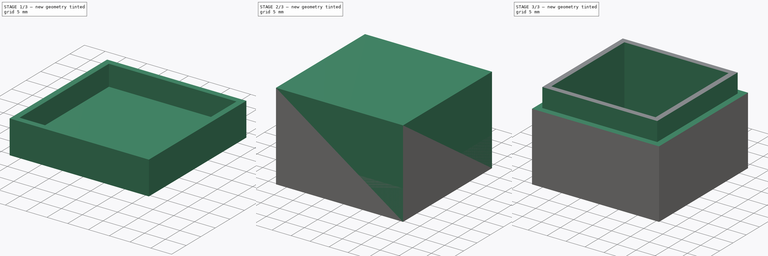
[diagram: build sequence overview — one tinted view per stage of 3, left to right]
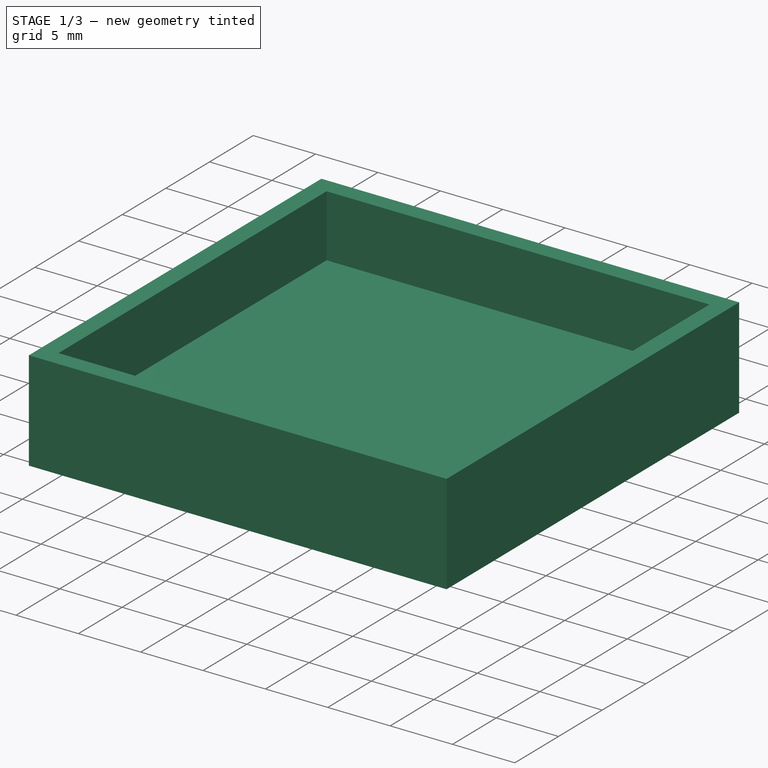
[diagram: stage 1 of 3 — iso view after this stage's code; geometry added in this stage tinted green]
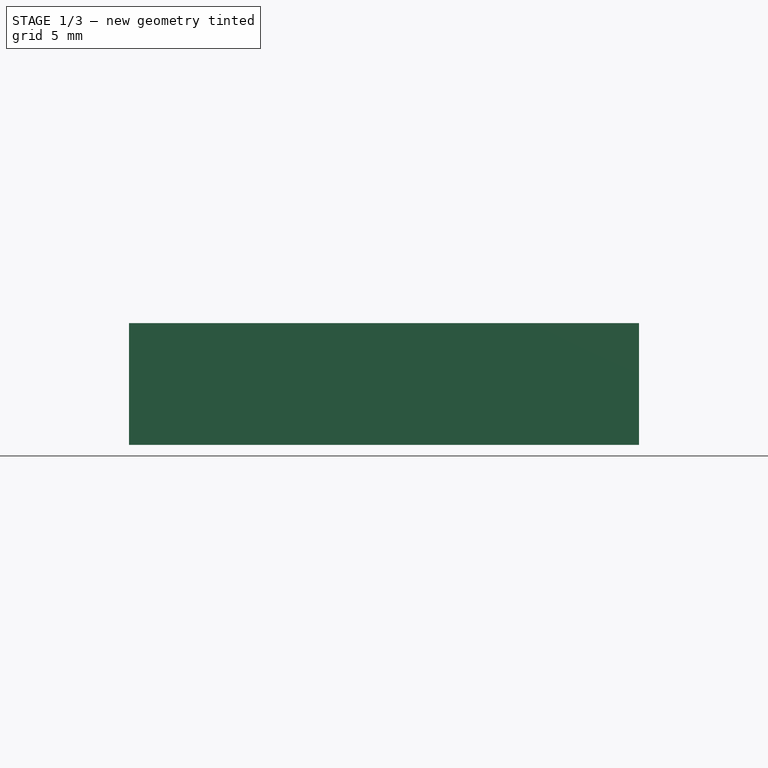
[diagram: stage 1 of 3 — front view after this stage's code; geometry added in this stage tinted green]
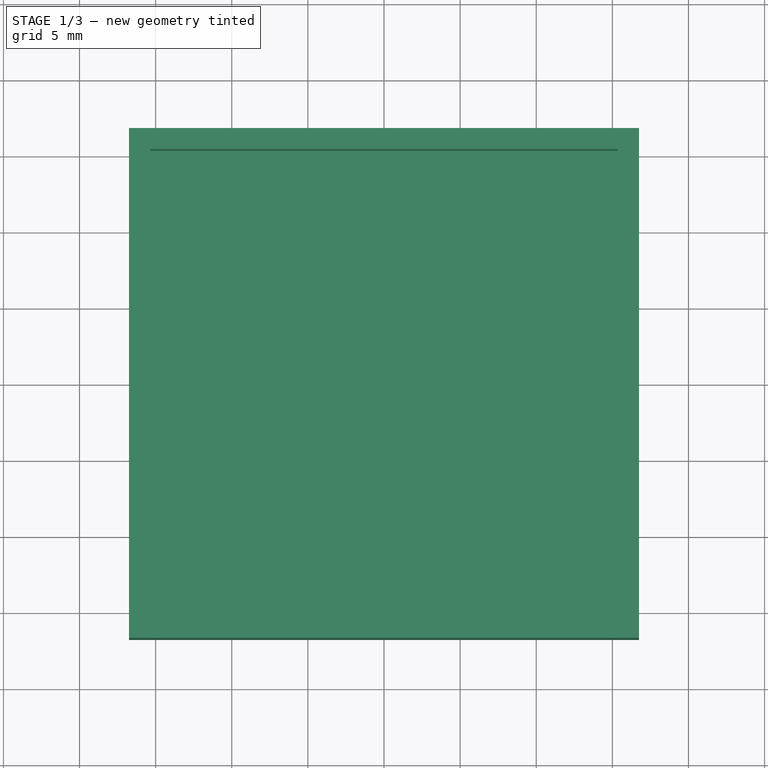
[diagram: stage 1 of 3 — top view after this stage's code; geometry added in this stage tinted green]
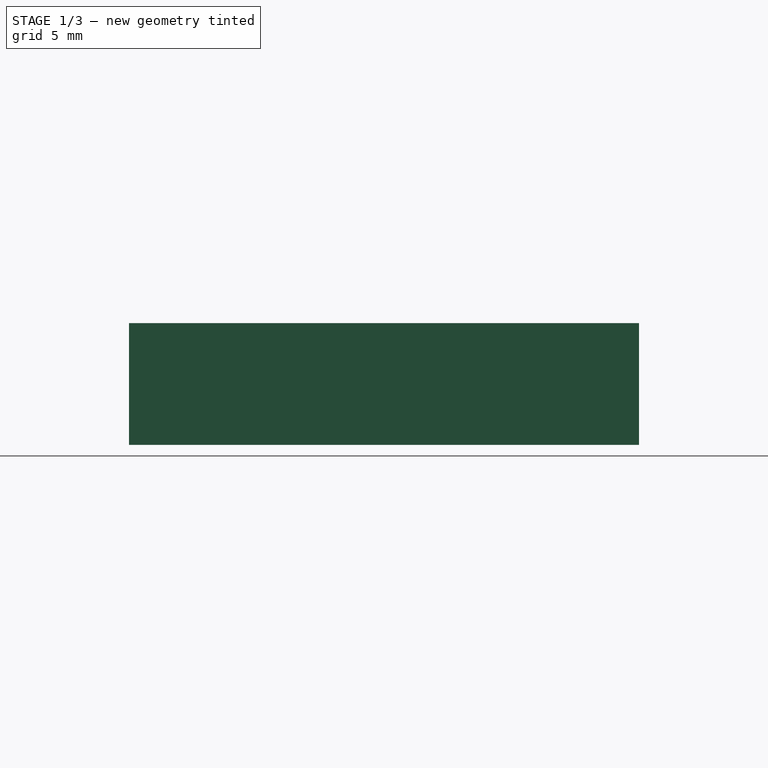
[diagram: stage 1 of 3 — right view after this stage's code; geometry added in this stage tinted green]
FCSTD DOCUMENT  (FreeCAD 1.0R39319 (Git))
Label: SquareSmallBox
License: All rights reserved
LicenseURL: https://en.wikipedia.org/wiki/All_rights_reserved
objects: Sketcher::SketchObject×4, PartDesign::Pad×2, PartDesign::Pocket×2, PartDesign::Body×2, App::VarSet×1, PartDesign::SubtractiveBox×1
note: 25 computed .brp shape members not serialized (recipe doc carries the construction recipe); baked Part::Feature solids carry a one-line shape summary decoded from their .brp

FEATURE [PartDesign::Body] Body  label="Bottom"
  AllowCompound = false
  Group = -> [Sketch,Pad,Box,Sketch001,Pocket]
  Origin = -> Origin
  Tip = -> Pocket
FEATURE [Sketcher::SketchObject] Sketch002
  ArcFitTolerance = 1e-06
  AttachmentSupport = -> [XY_Plane001]
  FullyConstrained = true
  MakeInternals = false
  MapMode = 5
  expr: Constraints[10] = VarSet.ExternalLength
  expr: Constraints[11] = VarSet.ExternalWidth
  sketch-geometry (5):
    g0: LineSegment StartX=-16.75 StartY=16.75 StartZ=0 EndX=-16.75 EndY=-16.75 EndZ=0
    g1: LineSegment StartX=-16.75 StartY=-16.75 StartZ=0 EndX=16.75 EndY=-16.75 EndZ=0
    g2: LineSegment StartX=16.75 StartY=-16.75 StartZ=0 EndX=16.75 EndY=16.75 EndZ=0
    g3: LineSegment StartX=16.75 StartY=16.75 StartZ=0 EndX=-16.75 EndY=16.75 EndZ=0
    g4: GeomPoint [constr] X=0 Y=0 Z=0
  constraints (12):
    c: Coincident(g0,g1)
    c: Coincident(g1,g2)
    c: Coincident(g2,g3)
    c: Coincident(g3,g0)
    c: Vertical(g0)
    c: Vertical(g2)
    c: Horizontal(g1)
    c: Horizontal(g3)
    c: Symmetric(g2,g0,g4)
    c: Coincident(g4,g-1)
    c: DistanceX(g3,g3) = 33.5
    c: DistanceY(g0,g0) = 33.5
FEATURE [PartDesign::Pad] Pad001
  Direction = (0,0,1)
  Length = 8
  Length2 = 10
  Profile = -> Sketch002
  ReferenceAxis = -> Sketch002 [N_Axis]
  Refine = true
  Suppressed = false
  Type = 0
  expr: Length = VarSet.CapHeightExternal
FEATURE [Sketcher::SketchObject] Sketch003
  ArcFitTolerance = 1e-06
  AttachmentOffset = pos=(0,0,8) rot=(0,0,1;0rad)
  AttachmentSupport = -> [XY_Plane001]
  FullyConstrained = true
  MakeInternals = false
  MapMode = 5
  Placement = pos=(0,0,8) rot=(0,0,1;0rad)
  expr: .AttachmentOffset.Base.z = VarSet.CapHeightExternal
  expr: Constraints[10] = VarSet.ExternalLength - VarSet.Thickness + VarSet.CapBuffer
  expr: Constraints[11] = VarSet.ExternalWidth - VarSet.Thickness + VarSet.CapBuffer
  sketch-geometry (5):
    g0: LineSegment StartX=-15.35 StartY=15.35 StartZ=0 EndX=-15.35 EndY=-15.35 EndZ=0
    g1: LineSegment StartX=-15.35 StartY=-15.35 StartZ=0 EndX=15.35 EndY=-15.35 EndZ=0
    g2: LineSegment StartX=15.35 StartY=-15.35 StartZ=0 EndX=15.35 EndY=15.35 EndZ=0
    g3: LineSegment StartX=15.35 StartY=15.35 StartZ=0 EndX=-15.35 EndY=15.35 EndZ=0
    g4: GeomPoint [constr] X=0 Y=0 Z=0
  constraints (12):
    c: Coincident(g0,g1)
    c: Coincident(g1,g2)
    c: Coincident(g2,g3)
    c: Coincident(g3,g0)
    c: Vertical(g0)
    c: Vertical(g2)
    c: Horizontal(g1)
    c: Horizontal(g3)
    c: Symmetric(g2,g0,g4)
    c: Coincident(g4,g-1)
    c: DistanceX(g3,g3) = 30.7
    c: DistanceY(g0,g0) = 30.7
FEATURE [PartDesign::Pocket] Pocket001
  BaseFeature = -> Pad001
  Direction = (0,0,-1)
  Length = 5
  Length2 = 5
  Profile = -> Sketch003
  ReferenceAxis = -> Sketch003 [N_Axis]
  Refine = true
  Suppressed = false
  Type = 0
  expr: Length = VarSet.CapHeightInternal
FEATURE [PartDesign::Body] Body001  label="Cap"
  AllowCompound = false
  Group = -> [Sketch002,Pad001,Sketch003,Pocket001]
  Origin = -> Origin001
  Tip = -> Pocket001
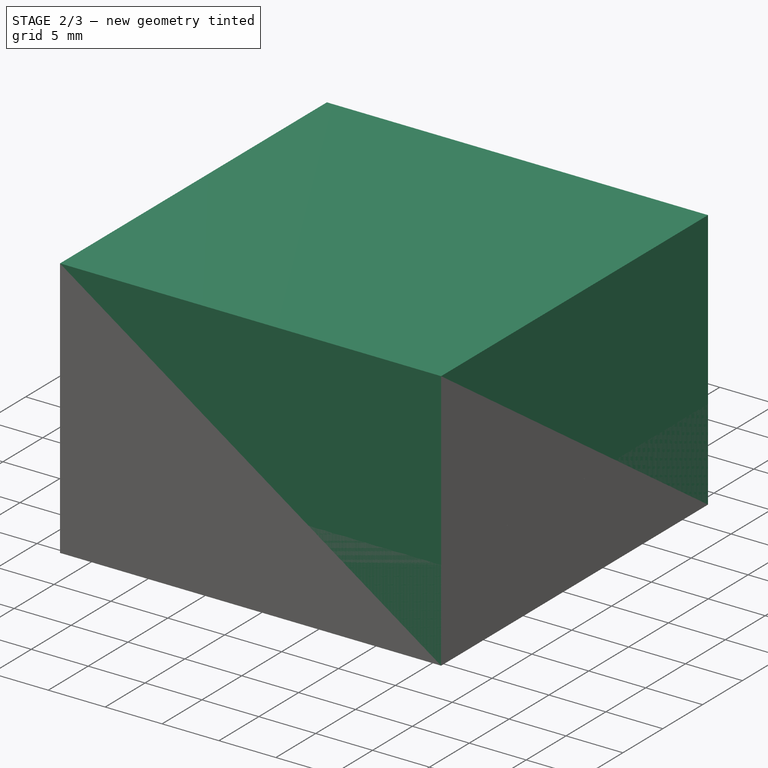
[diagram: stage 2 of 3 — iso view after this stage's code; geometry added in this stage tinted green]
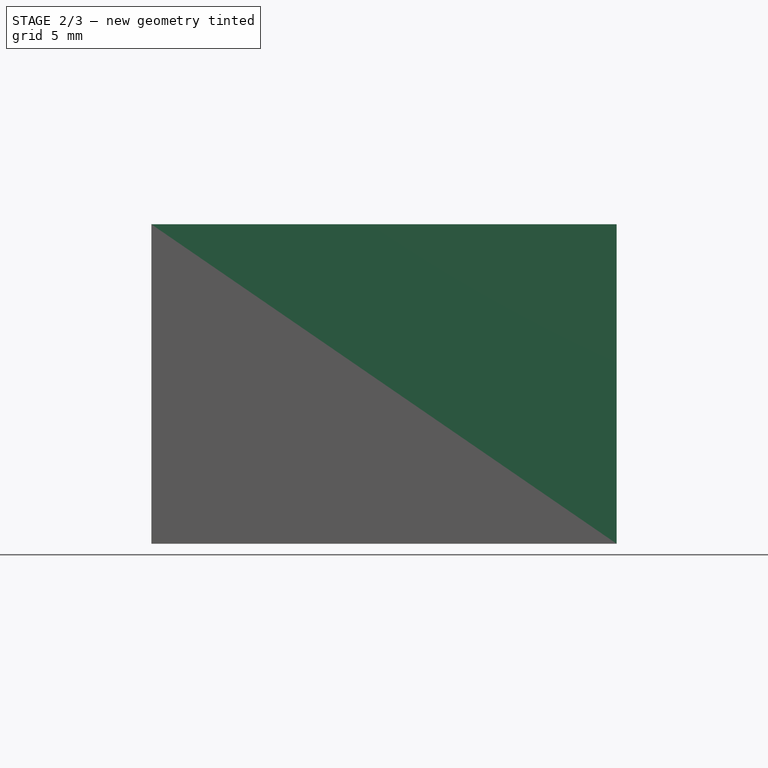
[diagram: stage 2 of 3 — front view after this stage's code; geometry added in this stage tinted green]
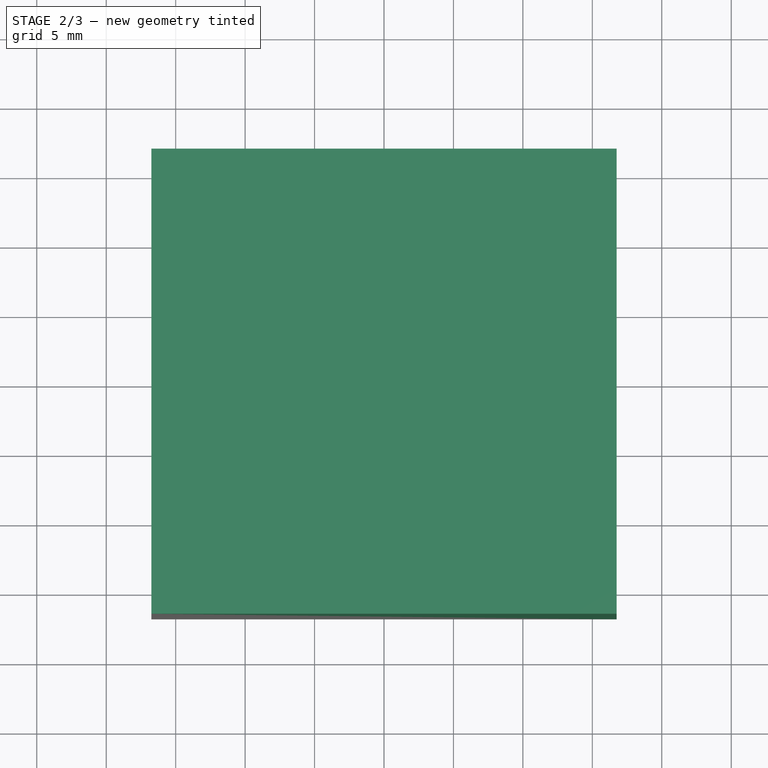
[diagram: stage 2 of 3 — top view after this stage's code; geometry added in this stage tinted green]
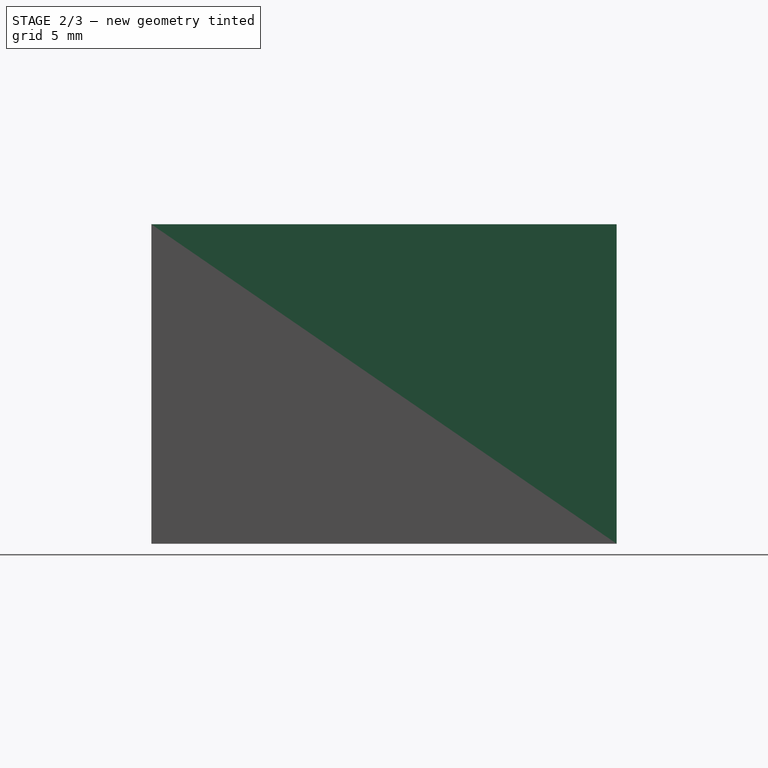
[diagram: stage 2 of 3 — right view after this stage's code; geometry added in this stage tinted green]
FEATURE [Sketcher::SketchObject] Sketch
  ArcFitTolerance = 1e-06
  AttachmentSupport = -> [XY_Plane]
  FullyConstrained = true
  MakeInternals = false
  MapMode = 5
  expr: Constraints[10] = VarSet.ExternalLength / 2
  expr: Constraints[11] = VarSet.ExternalWidth / 2
  expr: Constraints[8] = VarSet.ExternalLength
  expr: Constraints[9] = VarSet.ExternalWidth
  sketch-geometry (4):
    g0: LineSegment StartX=-16.75 StartY=16.75 StartZ=0 EndX=-16.75 EndY=-16.75 EndZ=0
    g1: LineSegment StartX=-16.75 StartY=-16.75 StartZ=0 EndX=16.75 EndY=-16.75 EndZ=0
    g2: LineSegment StartX=16.75 StartY=-16.75 StartZ=0 EndX=16.75 EndY=16.75 EndZ=0
    g3: LineSegment StartX=16.75 StartY=16.75 StartZ=0 EndX=-16.75 EndY=16.75 EndZ=0
  constraints (12):
    c: Coincident(g0,g1)
    c: Coincident(g1,g2)
    c: Coincident(g2,g3)
    c: Coincident(g3,g0)
    c: Vertical(g0)
    c: Vertical(g2)
    c: Horizontal(g1)
    c: Horizontal(g3)
    c: DistanceX(g3,g3) = 33.5
    c: DistanceY(g0,g0) = 33.5
    c: Distance(g2,g-2) = 16.75
    c: Distance(g1,g-1) = 16.75
FEATURE [App::VarSet] VarSet
  CapBuffer = 0.2
  CapDistortionHeight = 2
  CapHeightExternal = 8
  CapHeightInternal = 5
  ExternalHeight = 23
  ExternalLength = 33.5
  ExternalWidth = 33.5
  InternalHeight = 20
  InternalLength = 27.5
  InternalWidth = 27.5
  Thickness = 3
  expr: CapHeightExternal = CapHeightInternal + Thickness
  expr: ExternalHeight = InternalHeight + Thickness
  expr: ExternalLength = InternalLength + Thickness * 2
  expr: ExternalWidth = InternalWidth + Thickness * 2
FEATURE [PartDesign::Pad] Pad
  Direction = (0,0,1)
  Length = 23
  Length2 = 10
  Profile = -> Sketch
  ReferenceAxis = -> Sketch [N_Axis]
  Refine = true
  Suppressed = false
  Type = 0
  expr: Length = VarSet.ExternalHeight
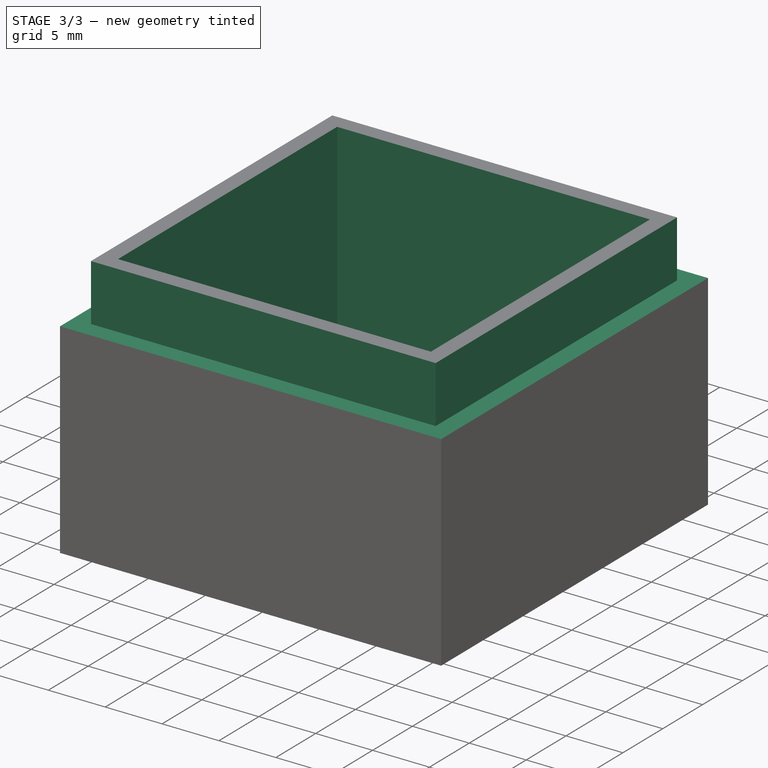
[diagram: stage 3 of 3 — iso view after this stage's code; geometry added in this stage tinted green]
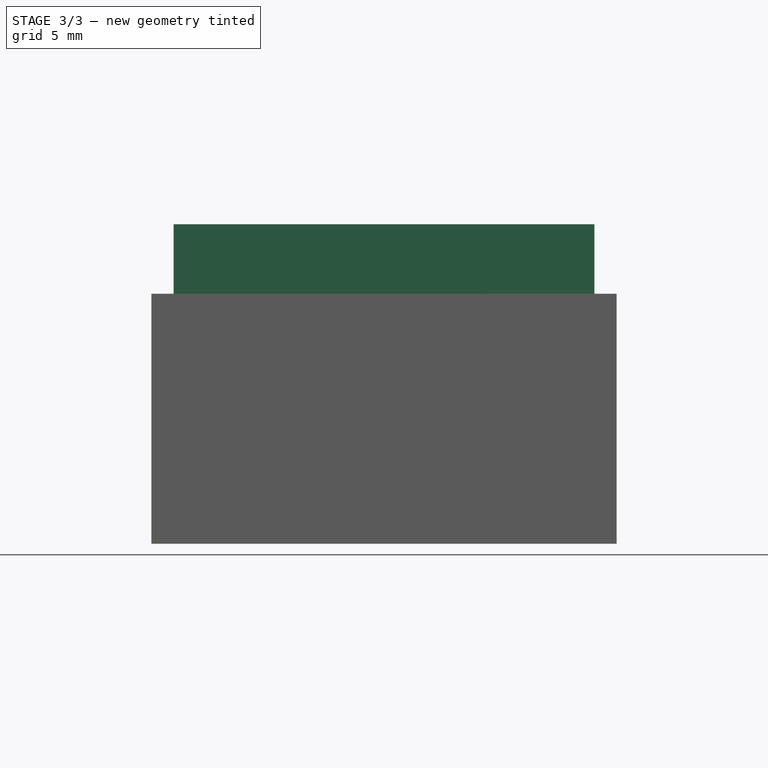
[diagram: stage 3 of 3 — front view after this stage's code; geometry added in this stage tinted green]
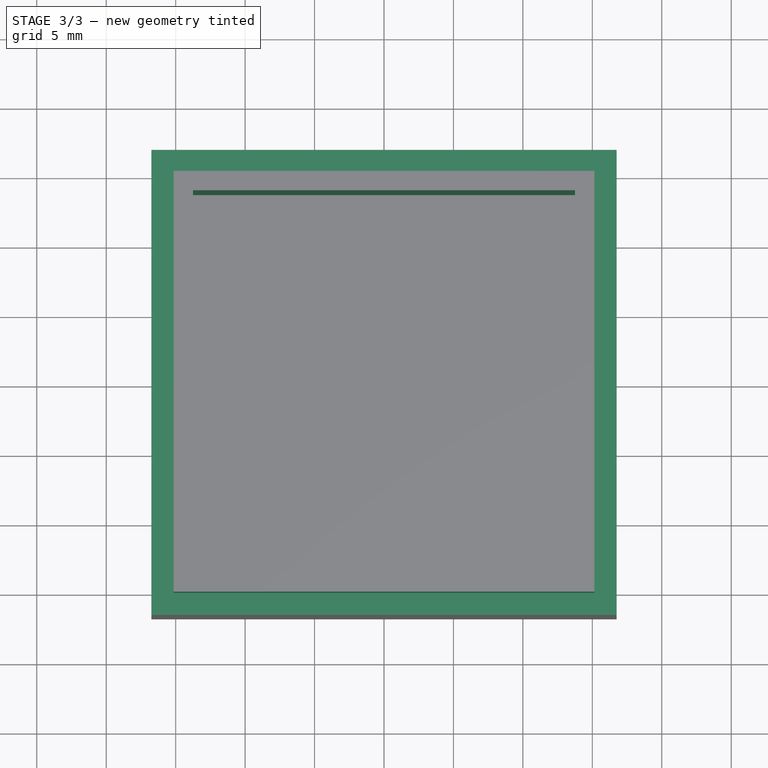
[diagram: stage 3 of 3 — top view after this stage's code; geometry added in this stage tinted green]
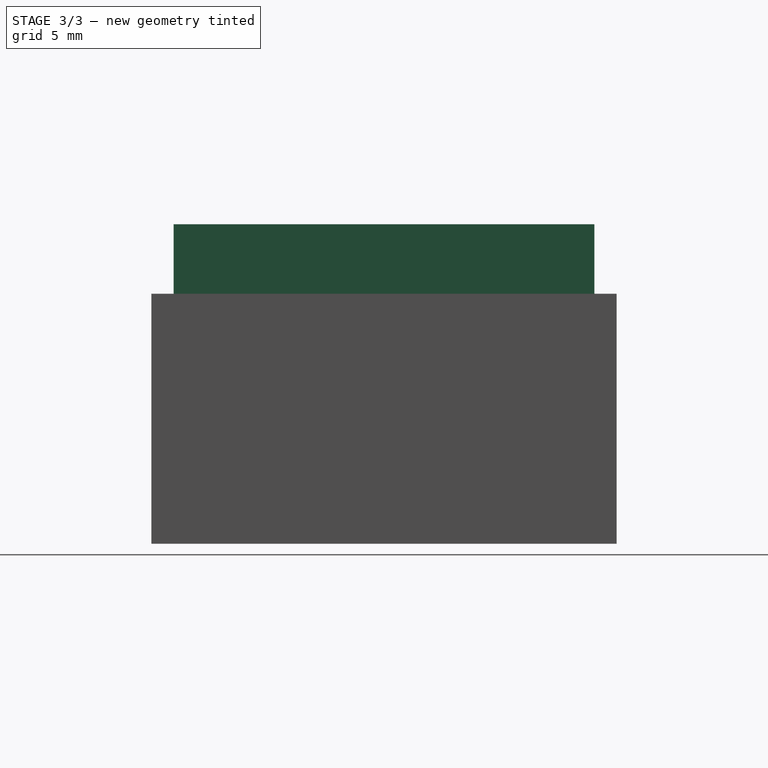
[diagram: stage 3 of 3 — right view after this stage's code; geometry added in this stage tinted green]
FEATURE [PartDesign::SubtractiveBox] Box
  AttacherType = Attacher::AttachEngine3D
  AttachmentOffset = pos=(-13.75,-13.75,3) rot=(0,0,1;0rad)
  AttachmentSupport = -> [Pad]
  BaseFeature = -> Pad
  Height = 20
  Length = 27.5
  MapMode = 2
  Placement = pos=(-13.75,-13.75,3) rot=(0,0,1;0rad)
  Refine = true
  Suppressed = false
  Width = 27.5
  expr: .AttachmentOffset.Base.x = -(VarSet.InternalLength / 2)
  expr: .AttachmentOffset.Base.y = -(VarSet.InternalWidth / 2)
  expr: .AttachmentOffset.Base.z = VarSet.ExternalHeight - VarSet.InternalHeight
  expr: Height = VarSet.InternalHeight
  expr: Length = VarSet.InternalLength
  expr: Width = VarSet.InternalWidth
FEATURE [Sketcher::SketchObject] Sketch001
  ArcFitTolerance = 1e-06
  AttachmentOffset = pos=(0,0,23) rot=(0,0,1;0rad)
  AttachmentSupport = -> [XY_Plane]
  ExternalGeometry = -> [Box]
  FullyConstrained = true
  MakeInternals = false
  MapMode = 5
  Placement = pos=(0,0,23) rot=(0,0,1;0rad)
  expr: .AttachmentOffset.Base.z = VarSet.ExternalHeight
  expr: Constraints[21] = (VarSet.Thickness + VarSet.CapBuffer) / 2
  expr: Constraints[22] = (VarSet.Thickness + VarSet.CapBuffer) / 2
  sketch-geometry (10):
    g0: LineSegment StartX=-16.75 StartY=16.75 StartZ=0 EndX=-16.75 EndY=-16.75 EndZ=0
    g1: LineSegment StartX=-16.75 StartY=-16.75 StartZ=0 EndX=16.75 EndY=-16.75 EndZ=0
    g2: LineSegment StartX=16.75 StartY=-16.75 StartZ=0 EndX=16.75 EndY=16.75 EndZ=0
    g3: LineSegment StartX=16.75 StartY=16.75 StartZ=0 EndX=-16.75 EndY=16.75 EndZ=0
    g4: GeomPoint [constr] X=0 Y=0 Z=0
    g5: LineSegment StartX=-15.15 StartY=15.15 StartZ=0 EndX=-15.15 EndY=-15.15 EndZ=0
    g6: LineSegment StartX=-15.15 StartY=-15.15 StartZ=0 EndX=15.15 EndY=-15.15 EndZ=0
    g7: LineSegment StartX=15.15 StartY=-15.15 StartZ=0 EndX=15.15 EndY=15.15 EndZ=0
    g8: LineSegment StartX=15.15 StartY=15.15 StartZ=0 EndX=-15.15 EndY=15.15 EndZ=0
    g9: GeomPoint [constr] X=0 Y=0 Z=0
  constraints (23):
    c: Coincident(g0,g1)
    c: Coincident(g1,g2)
    c: Coincident(g2,g3)
    c: Coincident(g3,g0)
    c: Vertical(g0)
    c: Vertical(g2)
    c: Horizontal(g1)
    c: Horizontal(g3)
    c: Symmetric(g2,g0,g4)
    c: Coincident(g4,g-1)
    c: Coincident(g1,g-3)
    c: Coincident(g5,g6)
    c: Coincident(g6,g7)
    c: Coincident(g7,g8)
    c: Coincident(g8,g5)
    c: Vertical(g5)
    c: Vertical(g7)
    c: Horizontal(g6)
    c: Horizontal(g8)
    c: Symmetric(g7,g5,g9)
    c: Coincident(g9,g4)
    c: DistanceX(g6,g1) = 1.6
    c: DistanceY(g1,g6) = 1.6
FEATURE [PartDesign::Pocket] Pocket
  BaseFeature = -> Box
  Direction = (0,0,-1)
  Length = 5
  Length2 = 5
  Placement = pos=(-13.75,-13.75,3) rot=(0,0,1;0rad)
  Profile = -> Sketch001
  ReferenceAxis = -> Sketch001 [N_Axis]
  Refine = true
  Suppressed = false
  Type = 0
  expr: Length = VarSet.CapHeightInternal
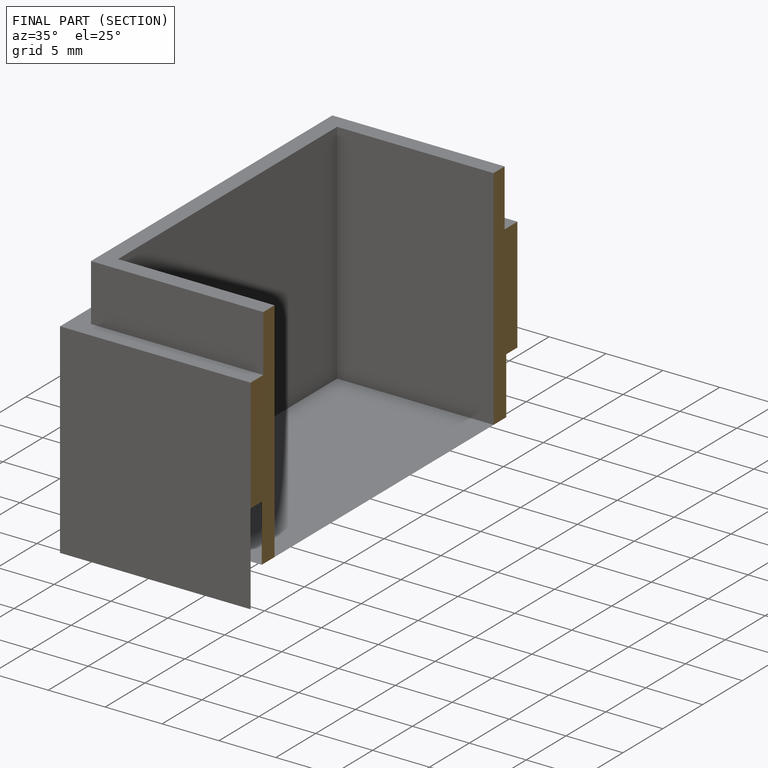
[diagram: finished part — half-section view (interior)]
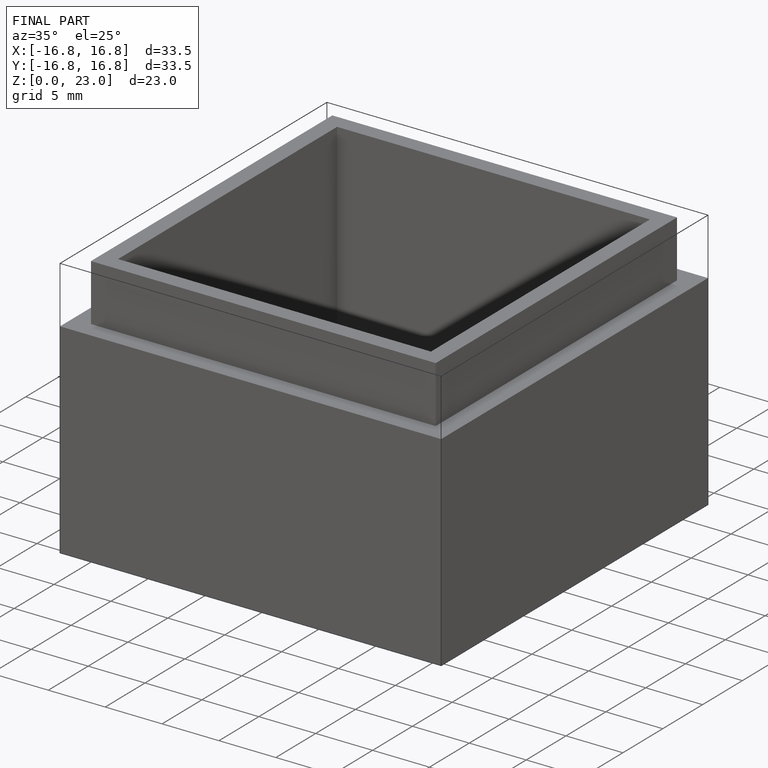
[diagram: finished part — iso view with bounding-box wireframe]
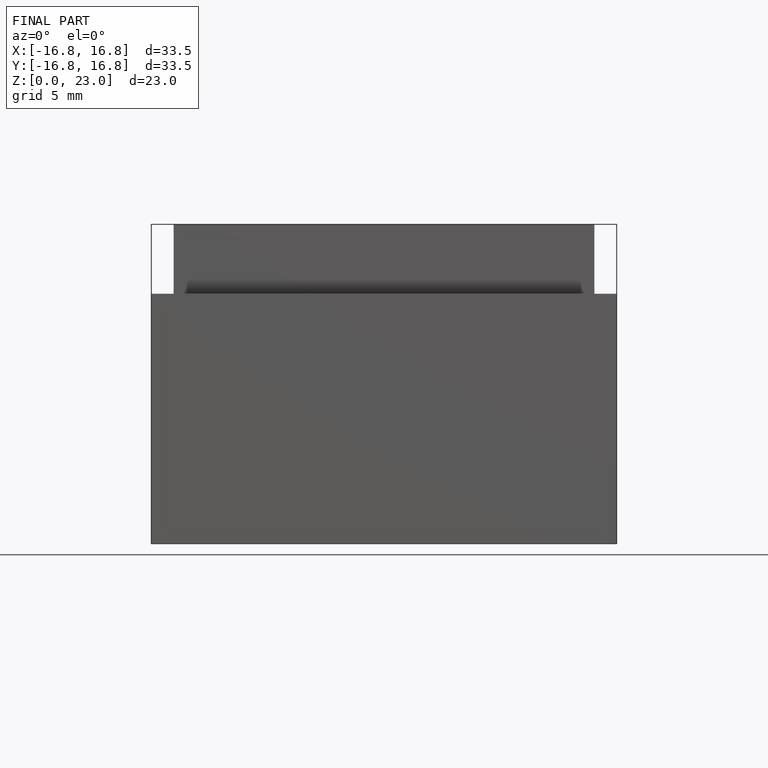
[diagram: finished part — front view with bounding-box wireframe]
